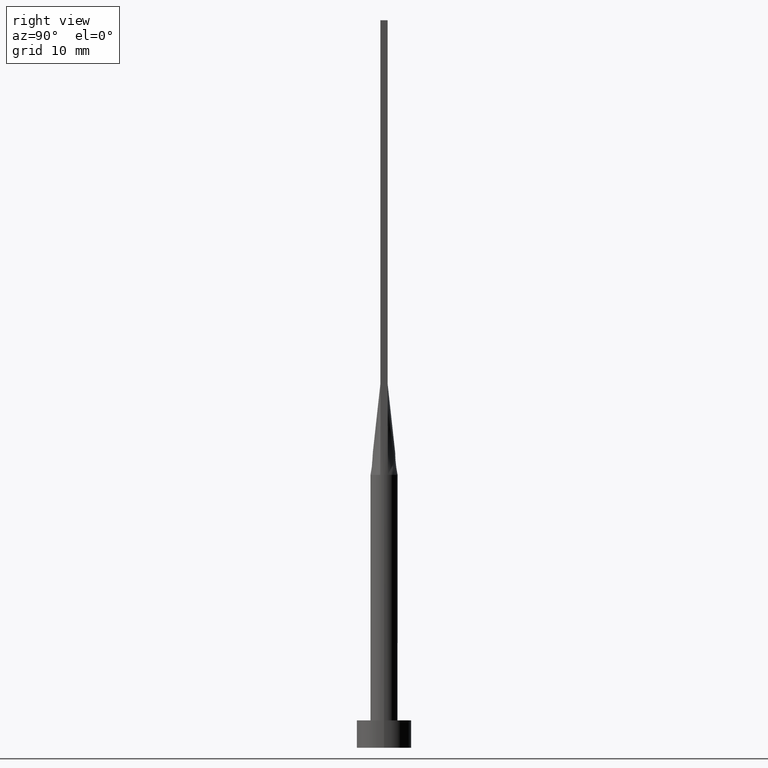
[diagram: clean part render]
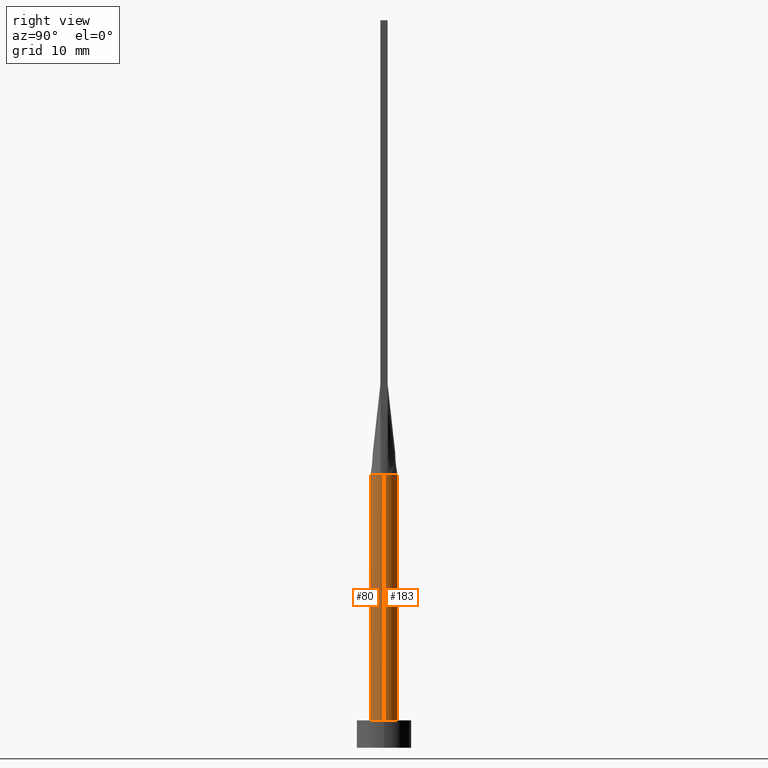
[diagram: same view with one multi-face feature highlighted, each face labeled with its STEP entity id]
A machine part, right view. The highlighted faces form ONE feature: a constant-radius fillet chain: 2 tangent blend faces with common blend radius 1.5 mm. The faces share edges in the B-rep.
Their STEP definitions:
[1] entity #80 (Cylinder):
#8 = DIRECTION ( 'NONE',  ( 1.000000000000000000, 0.000000000000000000, 0.000000000000000000 ) ) ;
#11 = AXIS2_PLACEMENT_3D ( 'NONE', #363, #145, #8 ) ;
#12 = CARTESIAN_POINT ( 'NONE',  ( -1.500000000000000222, 0.000000000000000000, 3.000000000000000000 ) ) ;
#32 = CIRCLE ( 'NONE', #364, 1.500000000000000222 ) ;
#53 = DIRECTION ( 'NONE',  ( 1.000000000000000000, 0.000000000000000000, 0.000000000000000000 ) ) ;
#57 = CARTESIAN_POINT ( 'NONE',  ( 1.442393550978850802, -0.4121129214357137083, 30.00000000000000000 ) ) ;
#65 = DIRECTION ( 'NONE',  ( 0.000000000000000000, 0.000000000000000000, 1.000000000000000000 ) ) ;
#66 = CIRCLE ( 'NONE', #11, 1.500000000000000222 ) ;
#70 = DIRECTION ( 'NONE',  ( -0.000000000000000000, -0.000000000000000000, -1.000000000000000000 ) ) ;
#73 = EDGE_CURVE ( 'NONE', #420, #331, #213, .T. ) ;
#75 = DIRECTION ( 'NONE',  ( 1.000000000000000000, 0.000000000000000000, 0.000000000000000000 ) ) ;
#79 = CARTESIAN_POINT ( 'NONE',  ( 1.500000000000000222, 1.836970198721030181E-16, 30.00000000000000000 ) ) ;
#80 = ADVANCED_FACE ( 'NONE', ( #344 ), #523, .T. ) ;
#93 = AXIS2_PLACEMENT_3D ( 'NONE', #572, #479, #75 ) ;
#98 = EDGE_LOOP ( 'NONE', ( #190, #543, #531, #277, #453, #552 ) ) ;
#120 = DIRECTION ( 'NONE',  ( -1.000000000000000000, 0.000000000000000000, 0.000000000000000000 ) ) ;
#127 = AXIS2_PLACEMENT_3D ( 'NONE', #327, #315, #53 ) ;
#140 = AXIS2_PLACEMENT_3D ( 'NONE', #387, #70, #120 ) ;
#141 = EDGE_CURVE ( 'NONE', #285, #234, #256, .T. ) ;
#145 = DIRECTION ( 'NONE',  ( 0.000000000000000000, 0.000000000000000000, 1.000000000000000000 ) ) ;
#190 = ORIENTED_EDGE ( 'NONE', *, *, #73, .F. ) ;
#213 = LINE ( 'NONE', #79, #395 ) ;
#225 = EDGE_CURVE ( 'NONE', #268, #331, #233, .T. ) ;
#233 = CIRCLE ( 'NONE', #127, 1.500000000000000222 ) ;
#234 = VERTEX_POINT ( 'NONE', #57 ) ;
#247 = CARTESIAN_POINT ( 'NONE',  ( -1.500000000000000222, 0.000000000000000000, 30.00000000000000000 ) ) ;
#256 = CIRCLE ( 'NONE', #93, 1.500000000000000222 ) ;
#268 = VERTEX_POINT ( 'NONE', #12 ) ;
#277 = ORIENTED_EDGE ( 'NONE', *, *, #306, .F. ) ;
#285 = VERTEX_POINT ( 'NONE', #402 ) ;
#292 = DIRECTION ( 'NONE',  ( -0.000000000000000000, -0.000000000000000000, -1.000000000000000000 ) ) ;
#293 = VECTOR ( 'NONE', #292, 1000.000000000000000 ) ;
#306 = EDGE_CURVE ( 'NONE', #361, #285, #66, .T. ) ;
#315 = DIRECTION ( 'NONE',  ( 0.000000000000000000, 0.000000000000000000, 1.000000000000000000 ) ) ;
#327 = CARTESIAN_POINT ( 'NONE',  ( 0.000000000000000000, 0.000000000000000000, 3.000000000000000000 ) ) ;
#331 = VERTEX_POINT ( 'NONE', #409 ) ;
#344 = FACE_OUTER_BOUND ( 'NONE', #98, .T. ) ;
#361 = VERTEX_POINT ( 'NONE', #507 ) ;
#363 = CARTESIAN_POINT ( 'NONE',  ( 0.000000000000000000, 0.000000000000000000, 30.00000000000000000 ) ) ;
#364 = AXIS2_PLACEMENT_3D ( 'NONE', #471, #65, #473 ) ;
#387 = CARTESIAN_POINT ( 'NONE',  ( 0.000000000000000000, 0.000000000000000000, 30.00000000000000000 ) ) ;
#395 = VECTOR ( 'NONE', #526, 1000.000000000000000 ) ;
#402 = CARTESIAN_POINT ( 'NONE',  ( -1.442368678646663405, -0.4121057215347019853, 30.00000000000000000 ) ) ;
#409 = CARTESIAN_POINT ( 'NONE',  ( 1.500000000000000222, 1.836970198721030181E-16, 3.000000000000000000 ) ) ;
#420 = VERTEX_POINT ( 'NONE', #536 ) ;
#453 = ORIENTED_EDGE ( 'NONE', *, *, #506, .T. ) ;
#471 = CARTESIAN_POINT ( 'NONE',  ( 0.000000000000000000, 0.000000000000000000, 30.00000000000000000 ) ) ;
#473 = DIRECTION ( 'NONE',  ( 1.000000000000000000, 5.329070518200751394E-15, 0.000000000000000000 ) ) ;
#479 = DIRECTION ( 'NONE',  ( 0.000000000000000000, 0.000000000000000000, 1.000000000000000000 ) ) ;
#506 = EDGE_CURVE ( 'NONE', #361, #268, #563, .T. ) ;
#507 = CARTESIAN_POINT ( 'NONE',  ( -1.500000000000000222, 8.735352324927310277E-17, 30.00000000000000000 ) ) ;
#523 = CYLINDRICAL_SURFACE ( 'NONE', #140, 1.500000000000000222 ) ;
#526 = DIRECTION ( 'NONE',  ( -0.000000000000000000, -0.000000000000000000, -1.000000000000000000 ) ) ;
#531 = ORIENTED_EDGE ( 'NONE', *, *, #141, .F. ) ;
#536 = CARTESIAN_POINT ( 'NONE',  ( 1.500000000000000000, -9.795443734464536283E-18, 30.00000000000000000 ) ) ;
#543 = ORIENTED_EDGE ( 'NONE', *, *, #550, .F. ) ;
#550 = EDGE_CURVE ( 'NONE', #234, #420, #32, .T. ) ;
#552 = ORIENTED_EDGE ( 'NONE', *, *, #225, .T. ) ;
#563 = LINE ( 'NONE', #247, #293 ) ;
#572 = CARTESIAN_POINT ( 'NONE',  ( 0.000000000000000000, 0.000000000000000000, 30.00000000000000000 ) ) ;
[2] entity #183 (Cylinder):
#1 = CARTESIAN_POINT ( 'NONE',  ( 0.000000000000000000, 0.000000000000000000, 30.00000000000000000 ) ) ;
#12 = CARTESIAN_POINT ( 'NONE',  ( -1.500000000000000222, 0.000000000000000000, 3.000000000000000000 ) ) ;
#17 = ORIENTED_EDGE ( 'NONE', *, *, #73, .T. ) ;
#26 = CARTESIAN_POINT ( 'NONE',  ( -1.442387148345315895, 0.4121110244020492197, 30.00000000000000000 ) ) ;
#31 = EDGE_CURVE ( 'NONE', #308, #182, #261, .T. ) ;
#33 = CARTESIAN_POINT ( 'NONE',  ( -0.3767059690781846548, 1.463302066271692015, 30.00000000000000000 ) ) ;
#35 = CARTESIAN_POINT ( 'NONE',  ( 0.1885753531885901724, 1.500000000000000666, 30.00000000000000711 ) ) ;
#37 = CIRCLE ( 'NONE', #330, 1.500000000000000222 ) ;
#64 = EDGE_CURVE ( 'NONE', #331, #268, #68, .T. ) ;
#68 = CIRCLE ( 'NONE', #416, 1.500000000000000222 ) ;
#73 = EDGE_CURVE ( 'NONE', #420, #331, #213, .T. ) ;
#77 = CARTESIAN_POINT ( 'NONE',  ( -0.7158926189626803049, 1.330660769095148410, 30.00000000000000355 ) ) ;
#79 = CARTESIAN_POINT ( 'NONE',  ( 1.500000000000000222, 1.836970198721030181E-16, 30.00000000000000000 ) ) ;
#102 = DIRECTION ( 'NONE',  ( -0.000000000000000000, -0.000000000000000000, -1.000000000000000000 ) ) ;
#124 = CARTESIAN_POINT ( 'NONE',  ( 1.212111761082483197, 0.8950936653899574935, 30.00000000000000711 ) ) ;
#129 = ORIENTED_EDGE ( 'NONE', *, *, #506, .F. ) ;
#142 = CYLINDRICAL_SURFACE ( 'NONE', #442, 1.500000000000000222 ) ;
#159 = DIRECTION ( 'NONE',  ( 0.000000000000000000, 0.000000000000000000, 1.000000000000000000 ) ) ;
#163 = CARTESIAN_POINT ( 'NONE',  ( -1.359280768448767329, 0.6502025712814717417, 30.00000000000001066 ) ) ;
#182 = VERTEX_POINT ( 'NONE', #324 ) ;
#183 = ADVANCED_FACE ( 'NONE', ( #545 ), #142, .T. ) ;
#201 = CARTESIAN_POINT ( 'NONE',  ( 0.000000000000000000, 0.000000000000000000, 30.00000000000000000 ) ) ;
#213 = LINE ( 'NONE', #79, #395 ) ;
#218 = CARTESIAN_POINT ( 'NONE',  ( 1.409267053536706671, 0.5276477295819161917, 30.00000000000000000 ) ) ;
#229 = CARTESIAN_POINT ( 'NONE',  ( 1.442362338805188937, 0.4121038472597355895, 30.00000000000000000 ) ) ;
#247 = CARTESIAN_POINT ( 'NONE',  ( -1.500000000000000222, 0.000000000000000000, 30.00000000000000000 ) ) ;
#255 = CARTESIAN_POINT ( 'NONE',  ( -0.8665786268839184014, 1.235433898681765896, 30.00000000000000355 ) ) ;
#259 = CARTESIAN_POINT ( 'NONE',  ( -1.409267053536706671, 0.5276477295819163027, 30.00000000000000711 ) ) ;
#261 = B_SPLINE_CURVE_WITH_KNOTS ( 'NONE', 3,
 ( #229, #218, #400, #124, #482, #346, #433, #391, #35, #297, #33, #77, #255, #521, #529, #163, #259, #26 ),
 .UNSPECIFIED., .F., .F.,
 ( 4, 2, 2, 2, 2, 2, 2, 2, 4 ),
 ( 0.000000000000000000, 0.1250000000000000833, 0.2500000000000001665, 0.3750000000000001110, 0.5000000000000001110, 0.6250000000000002220, 0.7500000000000001110, 0.8750000000000001110, 1.000000000000000000 ),
 .UNSPECIFIED. ) ;
#268 = VERTEX_POINT ( 'NONE', #12 ) ;
#280 = ORIENTED_EDGE ( 'NONE', *, *, #64, .T. ) ;
#288 = DIRECTION ( 'NONE',  ( 0.000000000000000000, 0.000000000000000000, 1.000000000000000000 ) ) ;
#292 = DIRECTION ( 'NONE',  ( -0.000000000000000000, -0.000000000000000000, -1.000000000000000000 ) ) ;
#293 = VECTOR ( 'NONE', #292, 1000.000000000000000 ) ;
#297 = CARTESIAN_POINT ( 'NONE',  ( -0.1885753531885899226, 1.500000000000000888, 30.00000000000000711 ) ) ;
#308 = VERTEX_POINT ( 'NONE', #359 ) ;
#319 = ORIENTED_EDGE ( 'NONE', *, *, #539, .F. ) ;
#321 = DIRECTION ( 'NONE',  ( -1.000000000000000000, 0.000000000000000000, 0.000000000000000000 ) ) ;
#324 = CARTESIAN_POINT ( 'NONE',  ( -1.442387148345315895, 0.4121110244020492197, 30.00000000000000000 ) ) ;
#330 = AXIS2_PLACEMENT_3D ( 'NONE', #201, #159, #338 ) ;
#331 = VERTEX_POINT ( 'NONE', #409 ) ;
#332 = CARTESIAN_POINT ( 'NONE',  ( 0.000000000000000000, 0.000000000000000000, 30.00000000000000000 ) ) ;
#334 = EDGE_CURVE ( 'NONE', #420, #308, #576, .T. ) ;
#338 = DIRECTION ( 'NONE',  ( 1.000000000000000000, 0.000000000000000000, 0.000000000000000000 ) ) ;
#346 = CARTESIAN_POINT ( 'NONE',  ( 0.8665786268839186235, 1.235433898681765008, 29.99999999999999289 ) ) ;
#358 = ORIENTED_EDGE ( 'NONE', *, *, #334, .F. ) ;
#359 = CARTESIAN_POINT ( 'NONE',  ( 1.442362338805188937, 0.4121038472597355895, 30.00000000000000000 ) ) ;
#361 = VERTEX_POINT ( 'NONE', #507 ) ;
#391 = CARTESIAN_POINT ( 'NONE',  ( 0.3767059690781852654, 1.463302066271692015, 30.00000000000000000 ) ) ;
#395 = VECTOR ( 'NONE', #526, 1000.000000000000000 ) ;
#400 = CARTESIAN_POINT ( 'NONE',  ( 1.359280768448766663, 0.6502025712814714087, 29.99999999999999289 ) ) ;
#409 = CARTESIAN_POINT ( 'NONE',  ( 1.500000000000000222, 1.836970198721030181E-16, 3.000000000000000000 ) ) ;
#416 = AXIS2_PLACEMENT_3D ( 'NONE', #441, #484, #438 ) ;
#417 = EDGE_LOOP ( 'NONE', ( #358, #17, #280, #129, #319, #465 ) ) ;
#420 = VERTEX_POINT ( 'NONE', #536 ) ;
#430 = DIRECTION ( 'NONE',  ( 1.000000000000000000, 0.000000000000000000, 0.000000000000000000 ) ) ;
#433 = CARTESIAN_POINT ( 'NONE',  ( 0.7158926189626808601, 1.330660769095147966, 29.99999999999999645 ) ) ;
#438 = DIRECTION ( 'NONE',  ( 1.000000000000000000, 0.000000000000000000, 0.000000000000000000 ) ) ;
#441 = CARTESIAN_POINT ( 'NONE',  ( 0.000000000000000000, 0.000000000000000000, 3.000000000000000000 ) ) ;
#442 = AXIS2_PLACEMENT_3D ( 'NONE', #1, #102, #321 ) ;
#465 = ORIENTED_EDGE ( 'NONE', *, *, #31, .F. ) ;
#482 = CARTESIAN_POINT ( 'NONE',  ( 1.114527776139990101, 1.017390422009413431, 29.99999999999999645 ) ) ;
#484 = DIRECTION ( 'NONE',  ( 0.000000000000000000, 0.000000000000000000, 1.000000000000000000 ) ) ;
#506 = EDGE_CURVE ( 'NONE', #361, #268, #563, .T. ) ;
#507 = CARTESIAN_POINT ( 'NONE',  ( -1.500000000000000222, 8.735352324927310277E-17, 30.00000000000000000 ) ) ;
#521 = CARTESIAN_POINT ( 'NONE',  ( -1.114527776139989212, 1.017390422009414319, 30.00000000000000000 ) ) ;
#526 = DIRECTION ( 'NONE',  ( -0.000000000000000000, -0.000000000000000000, -1.000000000000000000 ) ) ;
#529 = CARTESIAN_POINT ( 'NONE',  ( -1.212111761082482975, 0.8950936653899578266, 30.00000000000000355 ) ) ;
#536 = CARTESIAN_POINT ( 'NONE',  ( 1.500000000000000000, -9.795443734464536283E-18, 30.00000000000000000 ) ) ;
#539 = EDGE_CURVE ( 'NONE', #182, #361, #37, .T. ) ;
#545 = FACE_OUTER_BOUND ( 'NONE', #417, .T. ) ;
#563 = LINE ( 'NONE', #247, #293 ) ;
#576 = CIRCLE ( 'NONE', #580, 1.500000000000000222 ) ;
#580 = AXIS2_PLACEMENT_3D ( 'NONE', #332, #288, #430 ) ;